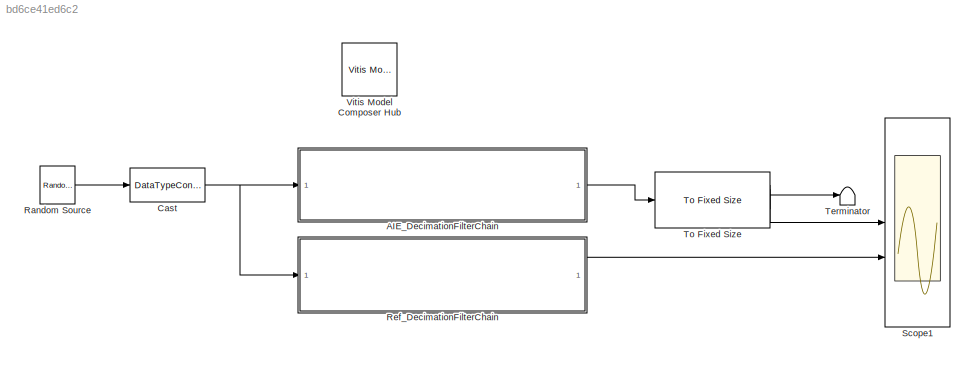
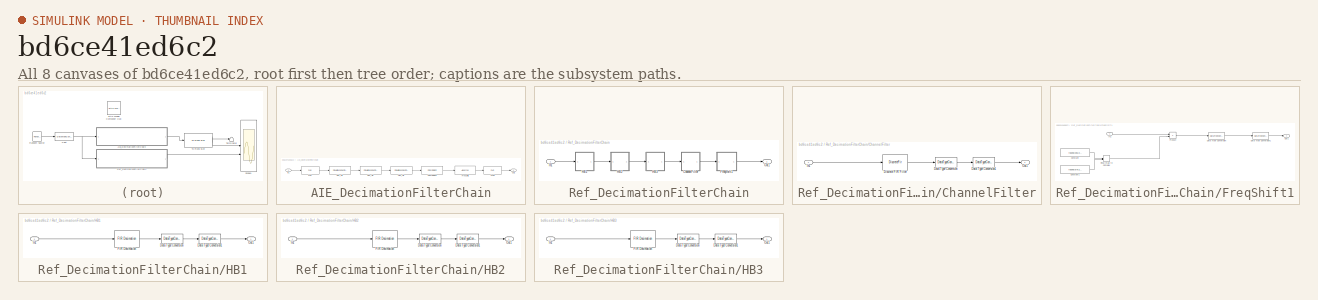
[diagram: thumbnail index - all 8 canvases of the model, root first then tree order]
MODEL slx_bd6ce41ed6c2
KIND model
CONFIG AbsTol = auto
CONFIG EnableMultiTasking = off
CONFIG FixedStep = auto
CONFIG MaxStep = auto
CONFIG MinStep = auto
CONFIG PostLoadFcn = CreateFilter;
CONFIG RelTol = 1e-3
CONFIG SampleTimeConstraint = Unconstrained
CONFIG SolverName = VariableStepAuto
CONFIG StartTime = 0.0
CONFIG StopTime = 5000
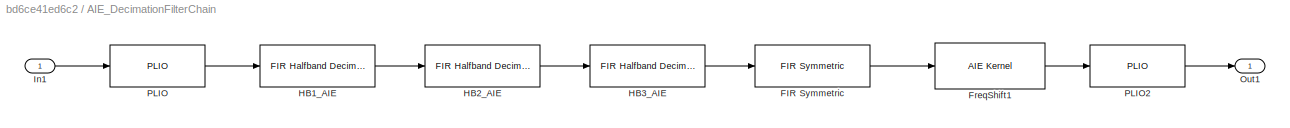
BLOCK [SubSystem] AIE_DecimationFilterChain
BLOCK [Reference] AIE_DecimationFilterChain/FIR Symmetric  REF=aieDSP/FIR Symmetric
  SourceBlock = aieDSP/FIR Symmetric
  SourceType = FIR Symmetric
BLOCK [Reference] AIE_DecimationFilterChain/FreqShift1  REF=aieBasic/AIE Kernel
  SourceBlock = aieBasic/AIE Kernel
  SourceType = AIE Kernel Function
BLOCK [Reference] AIE_DecimationFilterChain/HB1_AIE  REF=aieDSP/FIR Halfband Decimator
  SourceBlock = aieDSP/FIR Halfband Decimator
  SourceType = FIR Halfband Decimator
BLOCK [Reference] AIE_DecimationFilterChain/HB2_AIE  REF=aieDSP/FIR Halfband Decimator
  SourceBlock = aieDSP/FIR Halfband Decimator
  SourceType = FIR Halfband Decimator
BLOCK [Reference] AIE_DecimationFilterChain/HB3_AIE  REF=aieDSP/FIR Halfband Decimator
  SourceBlock = aieDSP/FIR Halfband Decimator
  SourceType = FIR Halfband Decimator
BLOCK [Inport] AIE_DecimationFilterChain/In1
BLOCK [Outport] AIE_DecimationFilterChain/Out1
BLOCK [Reference] AIE_DecimationFilterChain/PLIO  REF=aieBasic/PLIO
  SourceBlock = aieBasic/PLIO
  SourceType = PLIO
BLOCK [Reference] AIE_DecimationFilterChain/PLIO2  REF=aieBasic/PLIO
  SourceBlock = aieBasic/PLIO
  SourceType = PLIO
BLOCK [DataTypeConversion] Cast
  OutDataTypeStr = int16
  RndMeth = Floor
  SaturateOnIntegerOverflow = off
BLOCK [Reference] Random Source  REF=dspobslib/Random
Source
  SourceBlock = dspobslib/Random\nSource
  SourceType = Random Source Obsolete
  UserDataPersistent = on
BLOCK [SubSystem] Ref_DecimationFilterChain
BLOCK [SubSystem] Ref_DecimationFilterChain/ChannelFilter
BLOCK [DataTypeConversion] Ref_DecimationFilterChain/ChannelFilter/Data Type Conversion
  ConvertRealWorld = Stored Integer (SI)
  OutDataTypeStr = fixdt(1,32,Shift)
  RndMeth = Floor
  SaturateOnIntegerOverflow = off
BLOCK [DataTypeConversion] Ref_DecimationFilterChain/ChannelFilter/Data Type Conversion1
  OutDataTypeStr = int16
  RndMeth = Floor
BLOCK [DiscreteFir] Ref_DecimationFilterChain/ChannelFilter/Discrete FIR Filter
  Coefficients = COEFFS
  InputPortMap = u0
  InputProcessing = Columns as channels (frame based)
  OutputPortMap = o0
BLOCK [Inport] Ref_DecimationFilterChain/ChannelFilter/In1
BLOCK [Outport] Ref_DecimationFilterChain/ChannelFilter/Out1
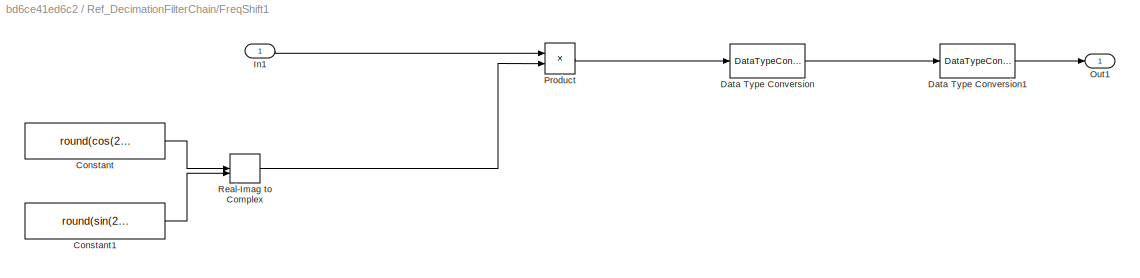
BLOCK [SubSystem] Ref_DecimationFilterChain/FreqShift1
BLOCK [Constant] Ref_DecimationFilterChain/FreqShift1/Constant
  SampleTime = 2048
  Value = round(cos(2*pi*[0:255]/8)*16384)
BLOCK [Constant] Ref_DecimationFilterChain/FreqShift1/Constant1
  SampleTime = 2048
  Value = round(sin(2*pi*[0:255]/8)*16384)
BLOCK [DataTypeConversion] Ref_DecimationFilterChain/FreqShift1/Data Type Conversion
  ConvertRealWorld = Stored Integer (SI)
  OutDataTypeStr = fixdt(1,32,14)
  RndMeth = Floor
  SaturateOnIntegerOverflow = off
BLOCK [DataTypeConversion] Ref_DecimationFilterChain/FreqShift1/Data Type Conversion1
  OutDataTypeStr = int16
  RndMeth = Floor
BLOCK [Inport] Ref_DecimationFilterChain/FreqShift1/In1
BLOCK [Outport] Ref_DecimationFilterChain/FreqShift1/Out1
BLOCK [Product] Ref_DecimationFilterChain/FreqShift1/Product
BLOCK [RealImagToComplex] Ref_DecimationFilterChain/FreqShift1/Real-Imag to Complex
BLOCK [SubSystem] Ref_DecimationFilterChain/HB1
BLOCK [DataTypeConversion] Ref_DecimationFilterChain/HB1/Data Type Conversion
  ConvertRealWorld = Stored Integer (SI)
  OutDataTypeStr = fixdt(1,32,Shift)
  RndMeth = Floor
  SaturateOnIntegerOverflow = off
BLOCK [DataTypeConversion] Ref_DecimationFilterChain/HB1/Data Type Conversion1
  OutDataTypeStr = int16
  RndMeth = Floor
BLOCK [Reference] Ref_DecimationFilterChain/HB1/FIR Decimation  REF=dspmlti4/FIR
Decimation
  SourceBlock = dspmlti4/FIR\nDecimation
  SourceType = FIR Decimation
  UserDataPersistent = on
BLOCK [Inport] Ref_DecimationFilterChain/HB1/In1
BLOCK [Outport] Ref_DecimationFilterChain/HB1/Out1
BLOCK [SubSystem] Ref_DecimationFilterChain/HB2
BLOCK [DataTypeConversion] Ref_DecimationFilterChain/HB2/Data Type Conversion
  ConvertRealWorld = Stored Integer (SI)
  OutDataTypeStr = fixdt(1,32,Shift)
  RndMeth = Floor
  SaturateOnIntegerOverflow = off
BLOCK [DataTypeConversion] Ref_DecimationFilterChain/HB2/Data Type Conversion1
  OutDataTypeStr = int16
  RndMeth = Floor
BLOCK [Reference] Ref_DecimationFilterChain/HB2/FIR Decimation  REF=dspmlti4/FIR
Decimation
  SourceBlock = dspmlti4/FIR\nDecimation
  SourceType = FIR Decimation
  UserDataPersistent = on
BLOCK [Inport] Ref_DecimationFilterChain/HB2/In1
BLOCK [Outport] Ref_DecimationFilterChain/HB2/Out1
BLOCK [SubSystem] Ref_DecimationFilterChain/HB3
BLOCK [DataTypeConversion] Ref_DecimationFilterChain/HB3/Data Type Conversion
  ConvertRealWorld = Stored Integer (SI)
  OutDataTypeStr = fixdt(1,32,Shift)
  RndMeth = Floor
  SaturateOnIntegerOverflow = off
BLOCK [DataTypeConversion] Ref_DecimationFilterChain/HB3/Data Type Conversion1
  OutDataTypeStr = int16
  RndMeth = Floor
BLOCK [Reference] Ref_DecimationFilterChain/HB3/FIR Decimation  REF=dspmlti4/FIR
Decimation
  SourceBlock = dspmlti4/FIR\nDecimation
  SourceType = FIR Decimation
  UserDataPersistent = on
BLOCK [Inport] Ref_DecimationFilterChain/HB3/In1
BLOCK [Outport] Ref_DecimationFilterChain/HB3/Out1
BLOCK [Inport] Ref_DecimationFilterChain/In1
BLOCK [Outport] Ref_DecimationFilterChain/Out1
BLOCK [Scope] Scope1
  Floating = off
  NumInputPorts = 2
  ScopeSpecificationString = Simulink.scopes.TimeScopeBlockCfg('CurrentConfiguration', extmgr.ConfigurationSet(extmgr.Configuration('Core','General UI',true,'DisplayFullSourceName',false,'ShowMainToolbar',true),extmgr.Configuration('Sources','WiredSimulink',true,'DataLogging',false,'DataLoggingVariableName','ScopeData','DataLoggingLimitDataPoints',false,'DataLoggingMaxPoints','5000','DataLoggingDecimateData',false,'DataLoggin...<+2787ch>
BLOCK [Terminator] Terminator
BLOCK [Reference] To Fixed Size  REF=aieUtilities/To Fixed Size
  SourceBlock = aieUtilities/To Fixed Size
  SourceType = To Fixed Size
BLOCK [Reference] Vitis Model Composer Hub  REF=vmcUtilities/Vitis Model Composer Hub
  SourceBlock = vmcUtilities/Vitis Model Composer Hub
  SourceType = VMC Hub
  Tag = genX
  UserDataPersistent = on
LINE AIE_DecimationFilterChain/FIR Symmetric:1 -> AIE_DecimationFilterChain/FreqShift1:1
LINE AIE_DecimationFilterChain/FreqShift1:1 -> AIE_DecimationFilterChain/PLIO2:1
LINE AIE_DecimationFilterChain/HB1_AIE:1 -> AIE_DecimationFilterChain/HB2_AIE:1
LINE AIE_DecimationFilterChain/HB2_AIE:1 -> AIE_DecimationFilterChain/HB3_AIE:1
LINE AIE_DecimationFilterChain/HB3_AIE:1 -> AIE_DecimationFilterChain/FIR Symmetric:1
LINE AIE_DecimationFilterChain/In1:1 -> AIE_DecimationFilterChain/PLIO:1
LINE AIE_DecimationFilterChain/PLIO2:1 -> AIE_DecimationFilterChain/Out1:1
LINE AIE_DecimationFilterChain/PLIO:1 -> AIE_DecimationFilterChain/HB1_AIE:1
LINE AIE_DecimationFilterChain:1 -> To Fixed Size:1
NET Cast:1 -> AIE_DecimationFilterChain:1, Ref_DecimationFilterChain:1
LINE Random Source:1 -> Cast:1
LINE Ref_DecimationFilterChain/ChannelFilter/Data Type Conversion1:1 -> Ref_DecimationFilterChain/ChannelFilter/Out1:1
LINE Ref_DecimationFilterChain/ChannelFilter/Data Type Conversion:1 -> Ref_DecimationFilterChain/ChannelFilter/Data Type Conversion1:1
LINE Ref_DecimationFilterChain/ChannelFilter/Discrete FIR Filter:1 -> Ref_DecimationFilterChain/ChannelFilter/Data Type Conversion:1
LINE Ref_DecimationFilterChain/ChannelFilter/In1:1 -> Ref_DecimationFilterChain/ChannelFilter/Discrete FIR Filter:1
LINE Ref_DecimationFilterChain/ChannelFilter:1 -> Ref_DecimationFilterChain/FreqShift1:1
LINE Ref_DecimationFilterChain/FreqShift1/Constant1:1 -> Ref_DecimationFilterChain/FreqShift1/Real-Imag to Complex:2
LINE Ref_DecimationFilterChain/FreqShift1/Constant:1 -> Ref_DecimationFilterChain/FreqShift1/Real-Imag to Complex:1
LINE Ref_DecimationFilterChain/FreqShift1/Data Type Conversion1:1 -> Ref_DecimationFilterChain/FreqShift1/Out1:1
LINE Ref_DecimationFilterChain/FreqShift1/Data Type Conversion:1 -> Ref_DecimationFilterChain/FreqShift1/Data Type Conversion1:1
LINE Ref_DecimationFilterChain/FreqShift1/In1:1 -> Ref_DecimationFilterChain/FreqShift1/Product:1
LINE Ref_DecimationFilterChain/FreqShift1/Product:1 -> Ref_DecimationFilterChain/FreqShift1/Data Type Conversion:1
LINE Ref_DecimationFilterChain/FreqShift1/Real-Imag to Complex:1 -> Ref_DecimationFilterChain/FreqShift1/Product:2
LINE Ref_DecimationFilterChain/FreqShift1:1 -> Ref_DecimationFilterChain/Out1:1
LINE Ref_DecimationFilterChain/HB1/Data Type Conversion1:1 -> Ref_DecimationFilterChain/HB1/Out1:1
LINE Ref_DecimationFilterChain/HB1/Data Type Conversion:1 -> Ref_DecimationFilterChain/HB1/Data Type Conversion1:1
LINE Ref_DecimationFilterChain/HB1/FIR Decimation:1 -> Ref_DecimationFilterChain/HB1/Data Type Conversion:1
LINE Ref_DecimationFilterChain/HB1/In1:1 -> Ref_DecimationFilterChain/HB1/FIR Decimation:1
LINE Ref_DecimationFilterChain/HB1:1 -> Ref_DecimationFilterChain/HB2:1
LINE Ref_DecimationFilterChain/HB2/Data Type Conversion1:1 -> Ref_DecimationFilterChain/HB2/Out1:1
LINE Ref_DecimationFilterChain/HB2/Data Type Conversion:1 -> Ref_DecimationFilterChain/HB2/Data Type Conversion1:1
LINE Ref_DecimationFilterChain/HB2/FIR Decimation:1 -> Ref_DecimationFilterChain/HB2/Data Type Conversion:1
LINE Ref_DecimationFilterChain/HB2/In1:1 -> Ref_DecimationFilterChain/HB2/FIR Decimation:1
LINE Ref_DecimationFilterChain/HB2:1 -> Ref_DecimationFilterChain/HB3:1
LINE Ref_DecimationFilterChain/HB3/Data Type Conversion1:1 -> Ref_DecimationFilterChain/HB3/Out1:1
LINE Ref_DecimationFilterChain/HB3/Data Type Conversion:1 -> Ref_DecimationFilterChain/HB3/Data Type Conversion1:1
LINE Ref_DecimationFilterChain/HB3/FIR Decimation:1 -> Ref_DecimationFilterChain/HB3/Data Type Conversion:1
LINE Ref_DecimationFilterChain/HB3/In1:1 -> Ref_DecimationFilterChain/HB3/FIR Decimation:1
LINE Ref_DecimationFilterChain/HB3:1 -> Ref_DecimationFilterChain/ChannelFilter:1
LINE Ref_DecimationFilterChain/In1:1 -> Ref_DecimationFilterChain/HB1:1
LINE Ref_DecimationFilterChain:1 -> Scope1:2
LINE To Fixed Size:1 -> Scope1:1
LINE To Fixed Size:2 -> Terminator:1
note: NET lines group one-source signal fan-out (src -> all destinations, sorted); 1:1 wires keep LINE
